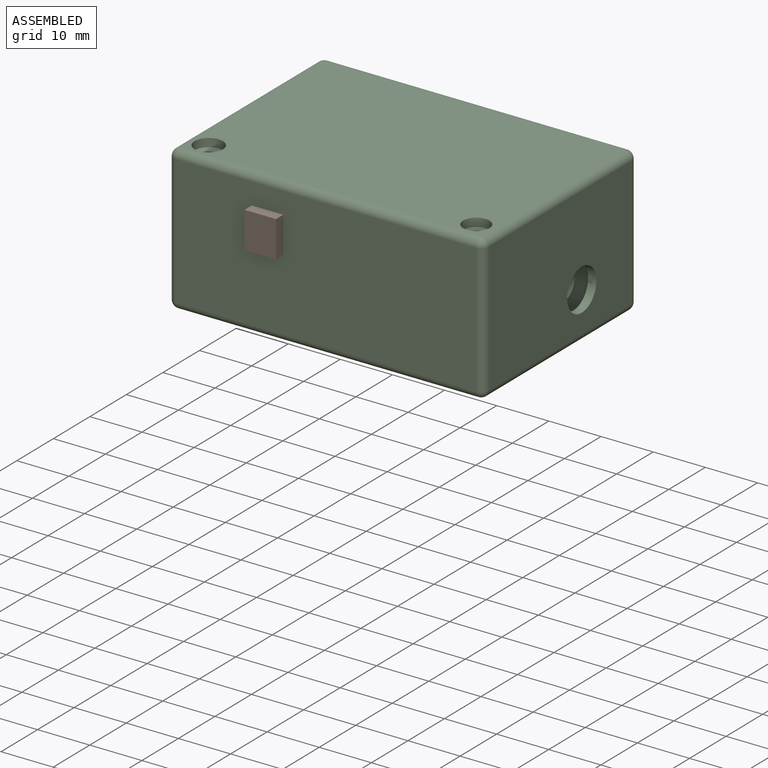
[diagram: assembled view]
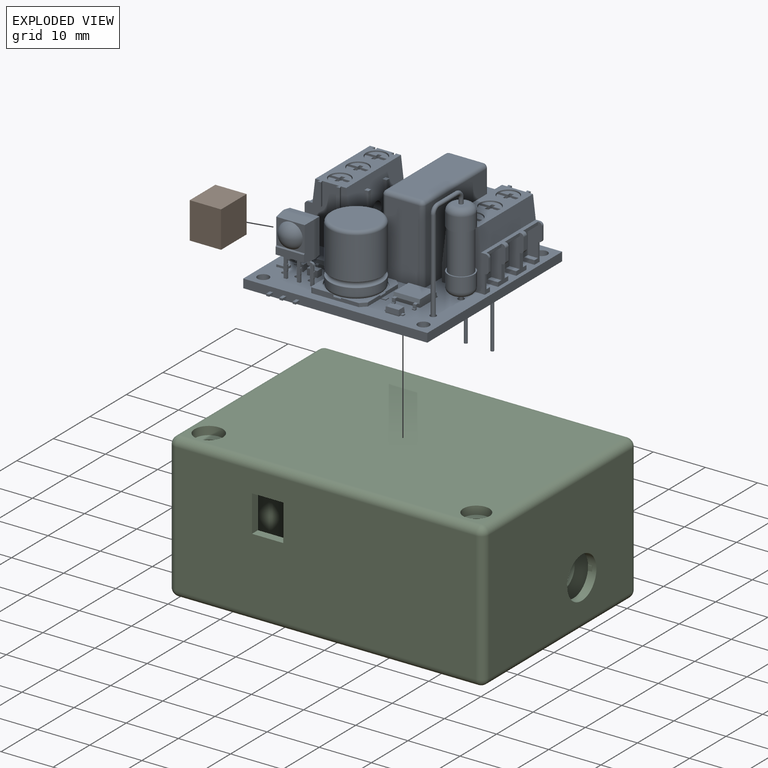
[diagram: exploded view]
GUIDED TOUR — FREECAD ASSEMBLY "case"

This assembly has 3 components, labeled P0..P2 below (a component is one placed body or linked part; the same part can appear more than once), held together by 0 modeled joints plus 2 derived contact edges. A joint is a constraint between two components; its type names the relative motion it leaves free:
  CONTACT — a derived adjacency edge — the two components touch in the source model (clearance under 2% of the assembly's diagonal); it is measured from the geometry, not a modeled constraint.
Axis/direction vectors are unit vectors and 'through' points are millimeter coordinates, both in the assembly's world frame.

MATES
  1. CONTACT "contact_0_1": P0 <-> P1, contact direction (-0.469, -0.811, 0.349) through (22.32, 4.51, 15.33) mm (derived from contact, not a modeled constraint)
  2. CONTACT "contact_0_2": P0 <-> P2, contact direction (0.000, 0.000, -1.000) through (14.91, 38.29, 5.96) mm (derived from contact, not a modeled constraint)

ASSEMBLY ORDER
  1. P0 — the base component [order heuristic]
  2. P1 [order heuristic]
  3. P2 [order heuristic]
Order-tag legend:
  [order heuristic] — this assembly is geometrically interlocked (no collision-free removal order exists), so components are listed in mate-graph order; insertion feasibility is not verified.

Of the 3 components, 2 carry a construction recipe — the FreeCAD feature program (sketches with constraints, then the solid features that consume them) that regenerates the part from scratch, quoted from this document or from the linked companion document it references; the rest are supplied as boundary geometry only. The tour below walks the components in assembly order: each is shown spotlighted twice — in the assembled view, then in the exploded view, where a leader line traces a displaced component back to its assembled socket (components that stay in place when exploded have no leader line; saturated green if recipe-attached, orange if geometry-only; every other component desaturated gray) — followed by its recipe or geometry summary and the mates that hold it.
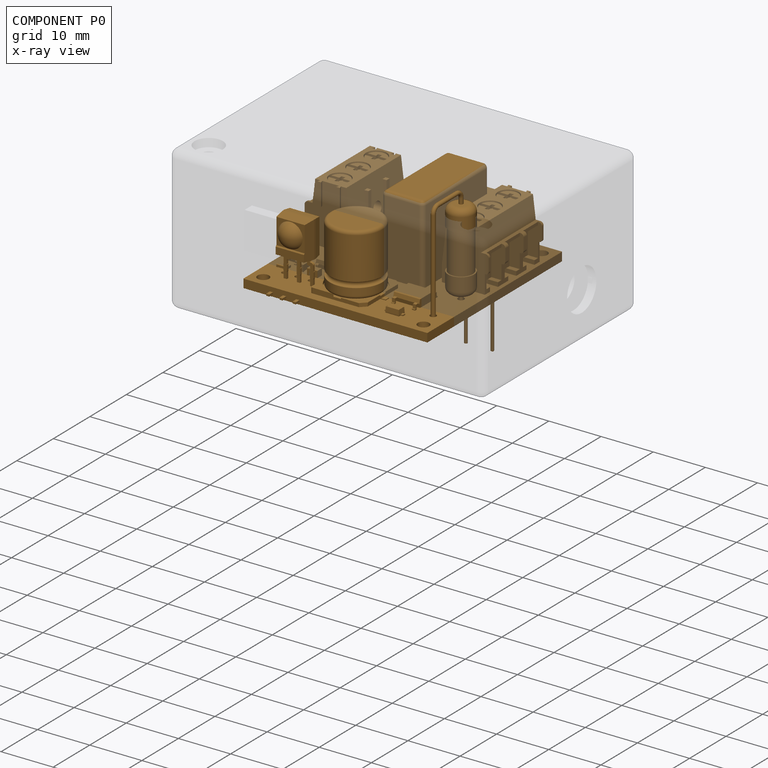
[diagram: component P0 — x-ray view]
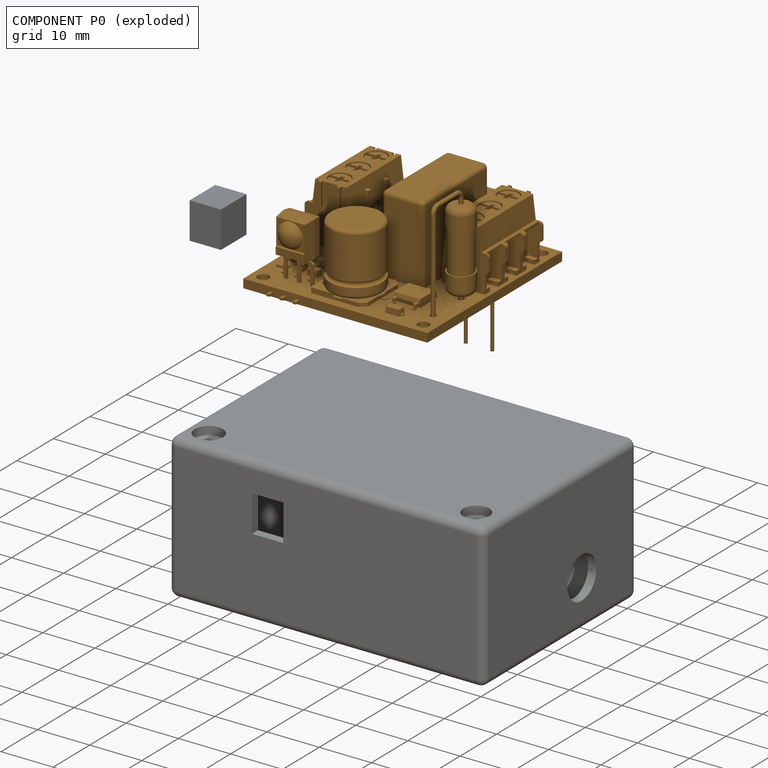
[diagram: component P0 — exploded]
COMPONENT P0 — geometry summary ("switch_pcb"; no construction recipe available for this part):
  bounding box: 38.2 x 37.9 x 35.3 mm
  tessellated surface: 114,258 triangles
  volume: 7300 mm^3 (14% of its bounding box)
Held by: resting contact with P1 (derived edge); resting contact with P2 (derived edge).
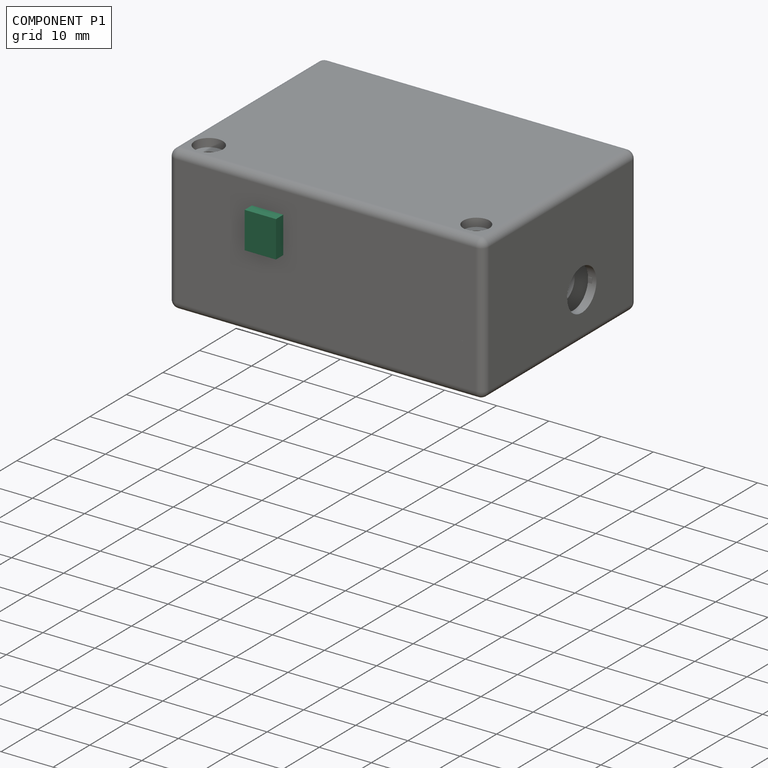
[diagram: component P1 — assembled]
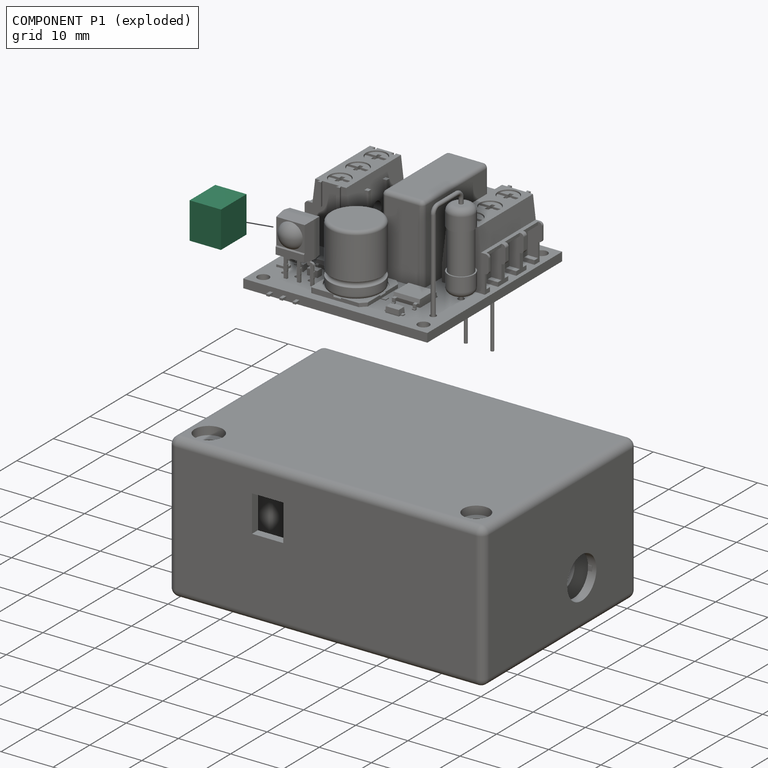
[diagram: component P1 — exploded]
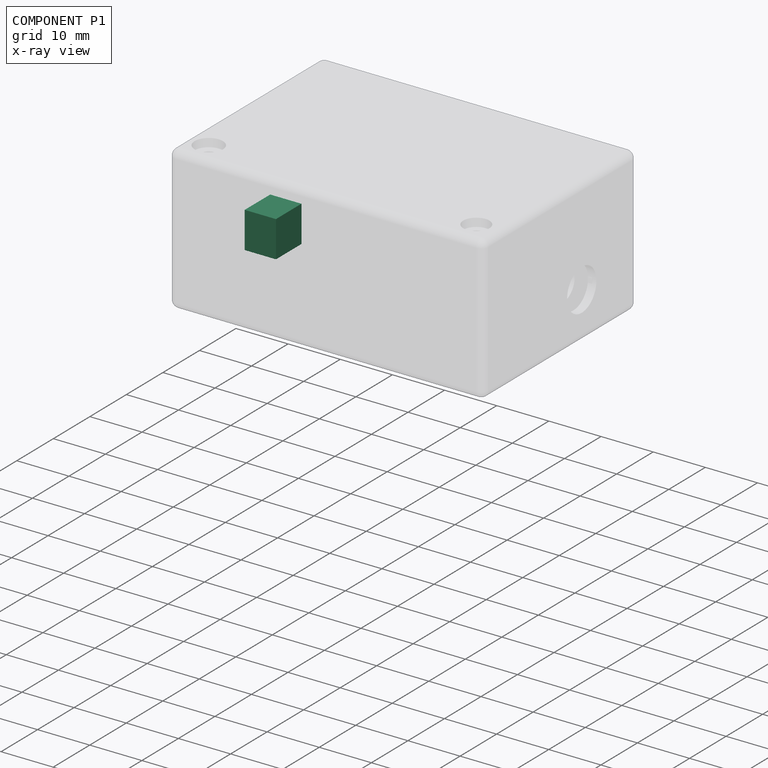
[diagram: component P1 — x-ray view]
COMPONENT P1 — recipe-attached ("IR receiver opening", modeled in this document).
Held by: resting contact with P0 (derived edge).
Construction recipe (the document's own serialized feature program — sketch geometry with constraints, then the solid features built on it; lengths are millimeters unless a unit is written):

FEATURE [Sketcher::SketchObject] Sketch001
  ArcFitTolerance = 1e-06
  AttachmentSupport = -> [XY_Plane015]
  FullyConstrained = true
  MakeInternals = false
  MapMode = 5
  expr: Constraints[10] = Spreadsheet.ir_receiver_package_height
  expr: Constraints[9] = Spreadsheet.ir_receiver_package_width
  sketch-geometry (4):
    g0: LineSegment StartX=0 StartY=7 StartZ=0 EndX=0 EndY=0 EndZ=0
    g1: LineSegment StartX=0 StartY=0 StartZ=0 EndX=6 EndY=0 EndZ=0
    g2: LineSegment StartX=6 StartY=0 StartZ=0 EndX=6 EndY=7 EndZ=0
    g3: LineSegment StartX=6 StartY=7 StartZ=0 EndX=0 EndY=7 EndZ=0
  constraints (11):
    c: Coincident(g0,g1)
    c: Coincident(g1,g2)
    c: Coincident(g2,g3)
    c: Coincident(g3,g0)
    c: Vertical(g0)
    c: Vertical(g2)
    c: Horizontal(g1)
    c: Horizontal(g3)
    c: Coincident(g0,g-1)
    c: DistanceX(g3,g3) = 6
    c: DistanceY(g2,g2) = 7
FEATURE [PartDesign::Pad] Pad001
  Direction = (0,0,1)
  Length = 7
  Length2 = 10
  Profile = -> Sketch001
  ReferenceAxis = -> Sketch001 [N_Axis]
  Refine = true
  Suppressed = false
  Type = 0
  expr: Length = Spreadsheet.ir_receiver_package_height
FEATURE [PartDesign::Body] Body002  label="IR receiver opening"
  AllowCompound = false
  Group = -> [Sketch001,Pad001]
  Origin = -> Origin015
  Placement = pos=(16.1,-2,15.2) rot=(0,0,1;0rad)
  Tip = -> Pad001
  expr: .Placement.Base.x = Spreadsheet.ir_receiver_pos_x + Spreadsheet.wall_width + Spreadsheet.cable_clamp_width + Spreadsheet.pcb_to_case_clearence
  expr: .Placement.Base.z = Spreadsheet.wall_width + Spreadsheet.pcb_mounting_standoff_height + Spreadsheet.pcb_thickness + Spreadsheet.ir_receiver_pos_z
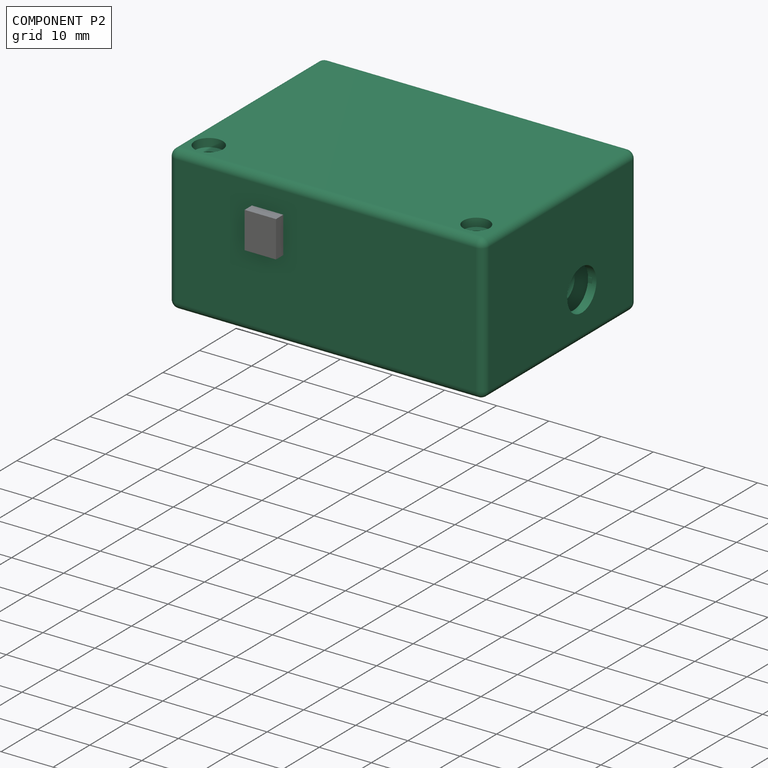
[diagram: component P2 — assembled]
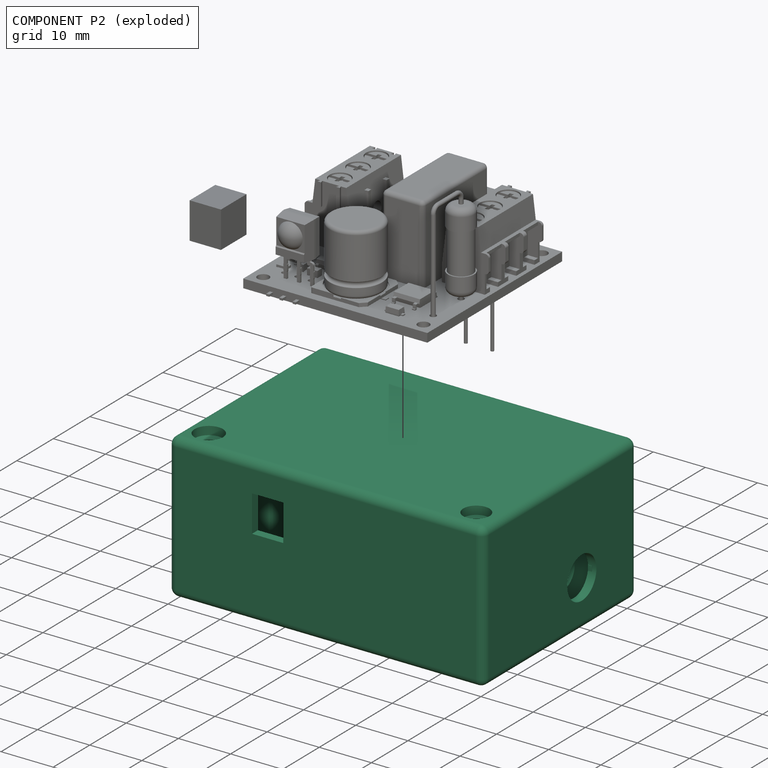
[diagram: component P2 — exploded]
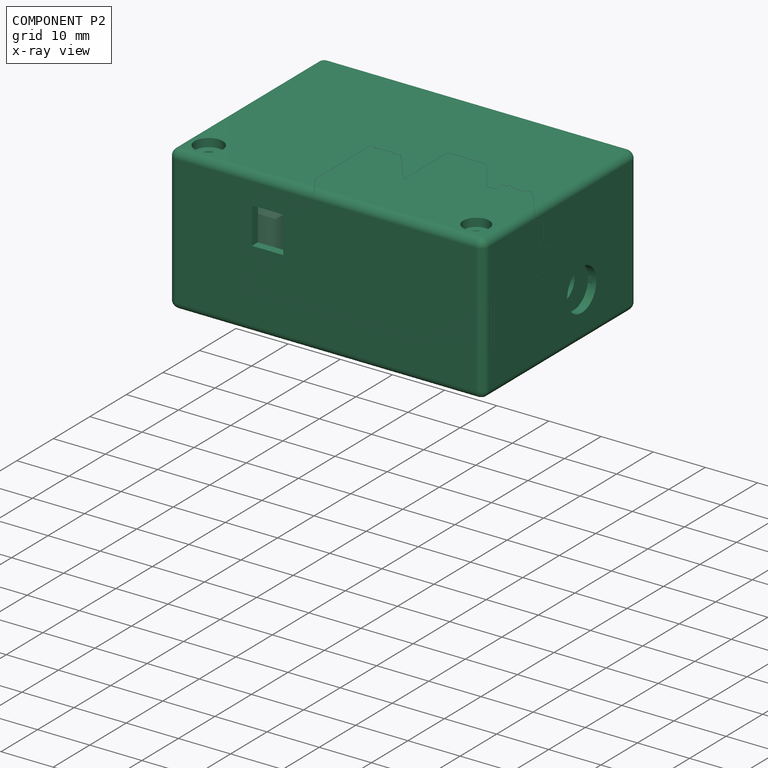
[diagram: component P2 — x-ray view]
COMPONENT P2 — recipe-attached ("Case001", modeled in this document).
Held by: resting contact with P0 (derived edge).
Construction recipe (the document's own serialized feature program — sketch geometry with constraints, then the solid features built on it; lengths are millimeters unless a unit is written):

FEATURE [Sketcher::SketchObject] Sketch
  ArcFitTolerance = 1e-06
  AttachmentSupport = -> [XY_Plane013]
  FullyConstrained = true
  MakeInternals = false
  MapMode = 5
  expr: Constraints[8] = Spreadsheet.pcb_width + 2 * Spreadsheet.pcb_to_case_clearence + 2 * Spreadsheet.wall_width + 2 * Spreadsheet.cable_clamp_width
  expr: Constraints[9] = Spreadsheet.pcb_length + 2 * Spreadsheet.pcb_to_case_clearence + 2 * Spreadsheet.wall_width
  sketch-geometry (4):
    g0: LineSegment StartX=0 StartY=42.125 StartZ=0 EndX=0 EndY=0 EndZ=0
    g1: LineSegment StartX=0 StartY=0 StartZ=0 EndX=60.5 EndY=0 EndZ=0
    g2: LineSegment StartX=60.5 StartY=0 StartZ=0 EndX=60.5 EndY=42.125 EndZ=0
    g3: LineSegment StartX=60.5 StartY=42.125 StartZ=0 EndX=0 EndY=42.125 EndZ=0
  constraints (11):
    c: Coincident(g0,g1)
    c: Coincident(g1,g2)
    c: Coincident(g2,g3)
    c: Coincident(g3,g0)
    c: Vertical(g0)
    c: Vertical(g2)
    c: Horizontal(g1)
    c: Horizontal(g3)
    c: DistanceX(g3,g3) = 60.5
    c: DistanceY(g2,g2) = 42.125
    c: Coincident(g-1,g0)
FEATURE [PartDesign::Pad] Pad
  Direction = (0,0,1)
  Length = 27.8
  Length2 = 10
  Profile = -> Sketch
  ReferenceAxis = -> Sketch [N_Axis]
  Refine = true
  Suppressed = false
  Type = 0
  expr: Length = Spreadsheet.pcb_to_case_clearence + 2 * Spreadsheet.wall_width + Spreadsheet.pcb_mounting_standoff_height + Spreadsheet.top_assembly_height + Spreadsheet.pcb_thickness
FEATURE [PartDesign::Fillet] Fillet
  Base = -> Pad [Edge1]
  BaseFeature = -> Pad
  Radius = 1.5
  Refine = true
  SupportTransform = false
  Suppressed = false
  UseAllEdges = true
FEATURE [PartDesign::Boolean] Boolean
  BaseFeature = -> Fillet
  Group = -> [Body002]
  Refine = true
  Suppressed = false
  Type = 1
  UsePlacement = true
FEATURE [PartDesign::Body] Body  label="Enclosure"
  AllowCompound = false
  Group = -> [Sketch,Pad,Fillet,Boolean]
  Origin = -> Origin013
  Tip = -> Boolean
FEATURE [Sketcher::SketchObject] Sketch002
  ArcFitTolerance = 1e-06
  AttachmentSupport = -> [YZ_Plane014]
  FullyConstrained = true
  MakeInternals = false
  MapMode = 5
  Placement = pos=(0,0,0) rot=(0.57735,0.57735,0.57735;2.0944rad)
  expr: Constraints[0] = Spreadsheet.cable_inlet_diameter
  expr: Constraints[1] = Spreadsheet.cable_inlet_diameter / 2
  expr: Constraints[2] = Spreadsheet.cable_inlet_diameter / 2
  sketch-geometry (1):
    g0: Circle CenterX=4 CenterY=4 CenterZ=0 NormalX=0 NormalY=0 NormalZ=1 AngleXU=0 Radius=4
  constraints (3):
    c: Diameter(g0) = 8
    c: DistanceX(g0) = 4
    c: DistanceY(g0) = 4
FEATURE [PartDesign::Pad] Pad002
  Direction = (1,0,0)
  Length = 10
  Length2 = 10
  Placement = pos=(0,0,0) rot=(1,1,1;2.0944rad)
  Profile = -> Sketch002
  ReferenceAxis = -> Sketch002 [N_Axis]
  Refine = true
  Suppressed = false
  Type = 0
FEATURE [PartDesign::Body] Body001  label="Cable inlet"
  AllowCompound = false
  Group = -> [Sketch002,Pad002]
  Origin = -> Origin014
  Placement = pos=(-3,22.9,5.2) rot=(0,0,1;0rad)
  Tip = -> Pad002
  expr: .Placement.Base.y = Spreadsheet.cable_inlet_pos_y - Spreadsheet.cable_inlet_diameter / 2 + Spreadsheet.wall_width + Spreadsheet.pcb_to_case_clearence
  expr: .Placement.Base.z = Spreadsheet.wall_width + Spreadsheet.pcb_mounting_standoff_height + Spreadsheet.pcb_thickness - Spreadsheet.cable_inlet_diameter / 2
FEATURE [Sketcher::SketchObject] Sketch003
  ArcFitTolerance = 1e-06
  AttachmentSupport = -> [XY_Plane016]
  FullyConstrained = true
  MakeInternals = false
  MapMode = 5
  expr: Constraints[8] = Spreadsheet.pcb_to_case_clearence * 2 + Spreadsheet.cable_clamp_width * 2 + Spreadsheet.pcb_width
  expr: Constraints[9] = Spreadsheet.pcb_length + 2 * Spreadsheet.pcb_to_case_clearence
  sketch-geometry (4):
    g0: LineSegment StartX=0 StartY=38.925 StartZ=0 EndX=0 EndY=0 EndZ=0
    g1: LineSegment StartX=0 StartY=0 StartZ=0 EndX=57.3 EndY=0 EndZ=0
    g2: LineSegment StartX=57.3 StartY=0 StartZ=0 EndX=57.3 EndY=38.925 EndZ=0
    g3: LineSegment StartX=57.3 StartY=38.925 StartZ=0 EndX=0 EndY=38.925 EndZ=0
  constraints (11):
    c: Coincident(g0,g1)
    c: Coincident(g1,g2)
    c: Coincident(g2,g3)
    c: Coincident(g3,g0)
    c: Vertical(g0)
    c: Vertical(g2)
    c: Horizontal(g1)
    c: Horizontal(g3)
    c: DistanceX(g3,g3) = 57.3
    c: DistanceY(g2,g2) = 38.925
    c: Coincident(g0,g-1)
FEATURE [PartDesign::Pad] Pad003
  Direction = (0,0,1)
  Length = 24.6
  Length2 = 10
  Profile = -> Sketch003
  ReferenceAxis = -> Sketch003 [N_Axis]
  Refine = true
  Suppressed = false
  Type = 0
  expr: Length = Spreadsheet.pcb_thickness + Spreadsheet.pcb_mounting_standoff_height + Spreadsheet.top_assembly_height + Spreadsheet.pcb_to_case_clearence
FEATURE [PartDesign::Body] Body003  label="Inner"
  AllowCompound = false
  Group = -> [Sketch003,Pad003]
  Origin = -> Origin016
  Placement = pos=(1.6,1.6,1.6) rot=(0,0,1;0rad)
  Tip = -> Pad003
  expr: .Placement.Base.x = Spreadsheet.wall_width
  expr: .Placement.Base.y = Spreadsheet.wall_width
  expr: .Placement.Base.z = Spreadsheet.wall_width
FEATURE [Sketcher::SketchObject] Sketch004
  ArcFitTolerance = 1e-06
  AttachmentSupport = -> [XY_Plane017]
  FullyConstrained = true
  MakeInternals = false
  MapMode = 5
  expr: Constraints[8] = Spreadsheet.pcb_to_case_clearence + 2.275
  sketch-geometry (5):
    g0: ArcOfCircle CenterX=3 CenterY=3.275 CenterZ=0 NormalX=0 NormalY=0 NormalZ=1 AngleXU=0 Radius=3 StartAngle=0 EndAngle=3.14159
    g1: LineSegment StartX=0 StartY=3.275 StartZ=0 EndX=0 EndY=0 EndZ=0
    g2: LineSegment StartX=0 StartY=0 StartZ=0 EndX=6 EndY=0 EndZ=0
    g3: LineSegment StartX=6 StartY=0 StartZ=0 EndX=6 EndY=3.275 EndZ=0
    g4: Circle CenterX=3 CenterY=3.275 CenterZ=0 NormalX=0 NormalY=0 NormalZ=1 AngleXU=0 Radius=1
  constraints (14):
    c: Coincident(g1,g0)
    c: Vertical(g1)
    c: Coincident(g2,g1)
    c: Horizontal(g2)
    c: Coincident(g3,g2)
    c: Coincident(g3,g0)
    c: Vertical(g3)
    c: DistanceX(g2,g2) = 6
    c: DistanceY(g1,g1) = 3.275
    c: Equal(g1,g3)
    c: Horizontal(g0,g0)
    c: Diameter(g4) = 2
    c: Coincident(g4,g0)
    c: Coincident(g-1,g1)
FEATURE [PartDesign::Pad] Pad004
  Direction = (0,0,1)
  Length = 4.4
  Length2 = 10
  Profile = -> Sketch004
  ReferenceAxis = -> Sketch004 [N_Axis]
  Refine = true
  Suppressed = false
  Type = 0
  expr: Length = Spreadsheet.pcb_mounting_standoff_height - Spreadsheet.wall_width
FEATURE [PartDesign::Body] Body004  label="Körper"
  AllowCompound = false
  Group = -> [Sketch004,Pad004]
  Origin = -> Origin017
  Placement = pos=(11.875,1.6,1.6) rot=(0,0,1;0rad)
  Tip = -> Pad004
  expr: .Placement.Base.x = Spreadsheet.wall_width + Spreadsheet.pcb_to_case_clearence + Spreadsheet.cable_clamp_width + 2.275 - 3
  expr: .Placement.Base.y = Spreadsheet.wall_width
  expr: .Placement.Base.z = Spreadsheet.wall_width
FEATURE [Sketcher::SketchObject] Sketch005
  ArcFitTolerance = 1e-06
  AttachmentSupport = -> [XY_Plane018]
  FullyConstrained = true
  MakeInternals = false
  MapMode = 5
  expr: Constraints[3] = Spreadsheet.cable_inlet_diameter * 1.8 + 6
  sketch-geometry (7):
    g0: LineSegment StartX=0 StartY=10.2 StartZ=0 EndX=0 EndY=-10.2 EndZ=0
    g1: GeomPoint X=0 Y=0 Z=0
    g2: LineSegment StartX=6 StartY=10.2 StartZ=0 EndX=6 EndY=-10.2 EndZ=0
    g3: ArcOfCircle CenterX=3 CenterY=10.2 CenterZ=0 NormalX=0 NormalY=0 NormalZ=1 AngleXU=0 Radius=3 StartAngle=0 EndAngle=3.14159
    g4: ArcOfCircle CenterX=3 CenterY=-10.2 CenterZ=0 NormalX=0 NormalY=0 NormalZ=1 AngleXU=0 Radius=3 StartAngle=3.14159 EndAngle=6.28319
    g5: Circle CenterX=3 CenterY=10.2 CenterZ=0 NormalX=0 NormalY=0 NormalZ=1 AngleXU=0 Radius=1
    g6: Circle CenterX=3 CenterY=-10.2 CenterZ=0 NormalX=0 NormalY=0 NormalZ=1 AngleXU=0 Radius=1
  constraints (18):
    c: Vertical(g0)
    c: Symmetric(g0,g0,g1)
    c: Coincident(g1,g-1)
    c: DistanceY(g0,g0) = 20.4
    c: Vertical(g2)
    c: Equal(g0,g2)
    c: Horizontal(g2,g0)
    c: DistanceX(g0,g2) = 6
    c: Coincident(g3,g2)
    c: Coincident(g3,g0)
    c: Coincident(g4,g0)
    c: Coincident(g4,g2)
    c: Equal(g3,g4)
    c: Horizontal(g3,g0)
    c: Diameter(g5) = 2
    c: Coincident(g5,g3)
    c: Diameter(g6) = 2
    c: Coincident(g6,g4)
FEATURE [PartDesign::Pad] Pad005
  Direction = (0,0,1)
  Length = 14
  Length2 = 10
  Profile = -> Sketch005
  ReferenceAxis = -> Sketch005 [N_Axis]
  Refine = true
  Suppressed = false
  Type = 0
  expr: Length = Spreadsheet.pcb_mounting_standoff_height + Spreadsheet.cable_inlet_diameter
FEATURE [PartDesign::Body] Body005  label="Cable relief"
  AllowCompound = false
  Group = -> [Sketch005,Pad005]
  Origin = -> Origin018
  Placement = pos=(4.6,26.9,1.6) rot=(0,0,1;0rad)
  Tip = -> Pad005
  expr: .Placement.Base.x = Spreadsheet.wall_width + Spreadsheet.pcb_to_case_clearence + Spreadsheet.cable_clamp_width / 2 - 3
  expr: .Placement.Base.y = Spreadsheet.cable_inlet_pos_y + Spreadsheet.wall_width + Spreadsheet.pcb_to_case_clearence
  expr: .Placement.Base.z = Spreadsheet.wall_width
FEATURE [Sketcher::SketchObject] Sketch006
  ArcFitTolerance = 1e-06
  AttachmentSupport = -> [YZ_Plane019]
  FullyConstrained = true
  MakeInternals = false
  MapMode = 5
  Placement = pos=(0,0,0) rot=(0.57735,0.57735,0.57735;2.0944rad)
  expr: Constraints[0] = Spreadsheet.cable_inlet_diameter * 0.8
  sketch-geometry (1):
    g0: Circle CenterX=0 CenterY=0 CenterZ=0 NormalX=0 NormalY=0 NormalZ=1 AngleXU=0 Radius=3.2
  constraints (2):
    c: Diameter(g0) = 6.4
    c: Coincident(g0,g-1)
FEATURE [PartDesign::Pad] Pad006
  Direction = (1,0,0)
  Length = 10
  Length2 = 10
  Placement = pos=(0,0,0) rot=(1,1,1;2.0944rad)
  Profile = -> Sketch006
  ReferenceAxis = -> Sketch006 [N_Axis]
  Refine = true
  Suppressed = false
  Type = 0
FEATURE [PartDesign::Body] Body006  label="Körper002"
  AllowCompound = false
  Group = -> [Sketch006,Pad006]
  Origin = -> Origin019
  Placement = pos=(3,26.9,9.2) rot=(0,0,1;0rad)
  Tip = -> Pad006
  expr: .Placement.Base.y = Spreadsheet.wall_width + Spreadsheet.pcb_to_case_clearence + Spreadsheet.cable_inlet_pos_y
  expr: .Placement.Base.z = Spreadsheet.pcb_mounting_standoff_height + Spreadsheet.wall_width + Spreadsheet.pcb_thickness
FEATURE [Sketcher::SketchObject] Sketch007
  ArcFitTolerance = 1e-06
  AttachmentSupport = -> [XY_Plane020]
  FullyConstrained = true
  MakeInternals = false
  MapMode = 5
  expr: Constraints[10] = Spreadsheet.wall_width / 2
  expr: Constraints[11] = Spreadsheet.wall_width / 2
  expr: Constraints[8] = Spreadsheet.wall_width + Spreadsheet.cable_clamp_width * 2 + Spreadsheet.pcb_to_case_clearence * 2 + Spreadsheet.pcb_width
  expr: Constraints[9] = Spreadsheet.wall_width + Spreadsheet.pcb_to_case_clearence * 2 + Spreadsheet.pcb_length
  sketch-geometry (13):
    g0: LineSegment StartX=0.8 StartY=41.325 StartZ=0 EndX=0.8 EndY=0.8 EndZ=0
    g1: LineSegment StartX=0.8 StartY=0.8 StartZ=0 EndX=59.7 EndY=0.8 EndZ=0
    g2: LineSegment StartX=59.7 StartY=0.8 StartZ=0 EndX=59.7 EndY=41.325 EndZ=0
    g3: LineSegment StartX=59.7 StartY=41.325 StartZ=0 EndX=0.8 EndY=41.325 EndZ=0
    g4: GeomPoint X=0.8 Y=0.8 Z=0
    g5: LineSegment StartX=58.9 StartY=40.525 StartZ=0 EndX=1.6 EndY=40.525 EndZ=0
    g6: LineSegment StartX=1.6 StartY=40.525 StartZ=0 EndX=1.6 EndY=1.6 EndZ=0
    g7: LineSegment StartX=1.6 StartY=1.6 StartZ=0 EndX=58.9 EndY=1.6 EndZ=0
    g8: LineSegment StartX=58.9 StartY=1.6 StartZ=0 EndX=58.9 EndY=40.525 EndZ=0
    g9: LineSegment [constr] StartX=58.9 StartY=40.525 StartZ=0 EndX=58.9 EndY=41.325 EndZ=0
    g10: LineSegment [constr] StartX=1.6 StartY=40.525 StartZ=0 EndX=0.8 EndY=40.525 EndZ=0
    g11: LineSegment [constr] StartX=1.6 StartY=1.6 StartZ=0 EndX=1.6 EndY=0.8 EndZ=0
    g12: LineSegment [constr] StartX=58.9 StartY=1.6 StartZ=0 EndX=59.7 EndY=1.6 EndZ=0
  constraints (41):
    c: Coincident(g0,g1)
    c: Coincident(g1,g2)
    c: Coincident(g2,g3)
    c: Coincident(g3,g0)
    c: Vertical(g0)
    c: Vertical(g2)
    c: Horizontal(g1)
    c: Horizontal(g3)
    c: DistanceX(g3,g3) = 58.9
    c: DistanceY(g2,g2) = 40.525
    c: DistanceX(g-1,g4) = 0.8
    c: DistanceY(g-1,g4) = 0.8
    c: Coincident(g4,g0)
    c: Coincident(g5,g6)
    c: Coincident(g5,g8)
    c: Coincident(g6,g7)
    c: Coincident(g7,g8)
    c: Perpendicular(g9,g5)
    c: PointOnObject(g9,g5)
    c: PointOnObject(g9,g3)
    c: Perpendicular(g10,g6)
    c: PointOnObject(g10,g6)
    c: PointOnObject(g10,g0)
    c: Perpendicular(g11,g7)
    c: PointOnObject(g11,g7)
    c: PointOnObject(g11,g1)
    c: Perpendicular(g12,g8)
    c: PointOnObject(g12,g8)
    c: PointOnObject(g12,g2)
    c: Parallel(g8,g2)
    c: Parallel(g5,g3)
    c: Parallel(g6,g0)
    c: Equal(g10,g9)
    c: Parallel(g7,g1)
    c: Equal(g11,g9)
    c: Equal(g12,g9)
    c: Distance(g9) = 0.8
    c: Block(g11)
    c: Block(g10)
    c: Block(g9)
    c: Block(g12)
FEATURE [PartDesign::Pad] Pad007
  Direction = (0,0,1)
  Length = 1
  Length2 = 10
  Profile = -> Sketch007
  ReferenceAxis = -> Sketch007 [N_Axis]
  Refine = true
  Suppressed = false
  Type = 0
FEATURE [PartDesign::Body] Body007  label="Körper003"
  AllowCompound = false
  Group = -> [Sketch007,Pad007]
  Origin = -> Origin020
  Placement = pos=(0,0,8.5) rot=(0,0,1;0rad)
  Tip = -> Pad007
FEATURE [Sketcher::SketchObject] Sketch008
  ArcFitTolerance = 1e-06
  AttachmentSupport = -> [XY_Plane021]
  FullyConstrained = true
  MakeInternals = false
  MapMode = 5
  sketch-geometry (8):
    g0: LineSegment StartX=0 StartY=6 StartZ=0 EndX=0 EndY=0 EndZ=0
    g1: LineSegment StartX=0 StartY=0 StartZ=0 EndX=6 EndY=0 EndZ=0
    g2: LineSegment StartX=6 StartY=0 StartZ=0 EndX=6 EndY=5 EndZ=0
    g3: LineSegment StartX=5 StartY=6 StartZ=0 EndX=0 EndY=6 EndZ=0
    g4: ArcOfCircle CenterX=5 CenterY=5 CenterZ=0 NormalX=0 NormalY=0 NormalZ=1 AngleXU=0 Radius=1 StartAngle=2e-16 EndAngle=1.5708
    g5: GeomPoint [constr] X=6 Y=6 Z=0
    g6: GeomPoint X=3 Y=3 Z=0
    g7: Circle CenterX=3 CenterY=3 CenterZ=0 NormalX=0 NormalY=0 NormalZ=1 AngleXU=0 Radius=1
  constraints (18):
    c: Coincident(g0,g1)
    c: Coincident(g1,g2)
    c: Coincident(g3,g0)
    c: Vertical(g0)
    c: Vertical(g2)
    c: Horizontal(g1)
    c: Horizontal(g3)
    c: PointOnObject(g5,g2)
    c: PointOnObject(g5,g3)
    c: Tangent(g2,g4) = -1.5708
    c: Tangent(g3,g4) = -1.5708
    c: DistanceX(g1,g1) = 6
    c: DistanceY(g0,g0) = 6
    c: Radius(g4) = 1
    c: Symmetric(g0,g1,g6)
    c: Diameter(g7) = 2
    c: Coincident(g7,g6)
    c: Coincident(g0,g-1)
FEATURE [PartDesign::Pad] Pad008
  Direction = (0,0,1)
  Length = 5
  Length2 = 10
  Profile = -> Sketch008
  ReferenceAxis = -> Sketch008 [N_Axis]
  Refine = true
  Suppressed = false
  Type = 0
FEATURE [PartDesign::Body] Body008  label="Körper004"
  AllowCompound = false
  Group = -> [Sketch008,Pad008]
  Origin = -> Origin021
  Placement = pos=(1.6,1.6,1.6) rot=(0,0,1;0rad)
  Tip = -> Pad008
  expr: .Placement.Base.x = Spreadsheet.wall_width
  expr: .Placement.Base.y = Spreadsheet.wall_width
  expr: .Placement.Base.z = Spreadsheet.wall_width
FEATURE [Sketcher::SketchObject] Sketch009
  ArcFitTolerance = 1e-06
  AttachmentSupport = -> [XY_Plane022]
  FullyConstrained = true
  MakeInternals = false
  MapMode = 5
  sketch-geometry (8):
    g0: LineSegment StartX=0 StartY=6 StartZ=0 EndX=0 EndY=0 EndZ=0
    g1: LineSegment StartX=0 StartY=0 StartZ=0 EndX=6 EndY=0 EndZ=0
    g2: LineSegment StartX=6 StartY=0 StartZ=0 EndX=6 EndY=5 EndZ=0
    g3: LineSegment StartX=5 StartY=6 StartZ=0 EndX=0 EndY=6 EndZ=0
    g4: ArcOfCircle CenterX=5 CenterY=5 CenterZ=0 NormalX=0 NormalY=0 NormalZ=1 AngleXU=0 Radius=1 StartAngle=2.84e-14 EndAngle=1.5708
    g5: GeomPoint [constr] X=6 Y=6 Z=0
    g6: GeomPoint X=3 Y=3 Z=0
    g7: Circle CenterX=3 CenterY=3 CenterZ=0 NormalX=0 NormalY=0 NormalZ=1 AngleXU=0 Radius=1.2
  constraints (18):
    c: Coincident(g0,g1)
    c: Coincident(g1,g2)
    c: Coincident(g3,g0)
    c: Vertical(g0)
    c: Vertical(g2)
    c: Horizontal(g1)
    c: Horizontal(g3)
    c: PointOnObject(g5,g2)
    c: PointOnObject(g5,g3)
    c: Tangent(g2,g4) = -1.5708
    c: Tangent(g3,g4) = -1.5708
    c: DistanceX(g1,g1) = 6
    c: Equal(g0,g1)
    c: Radius(g4) = 1
    c: Coincident(g0,g-1)
    c: Symmetric(g0,g1,g6)
    c: Diameter(g7) = 2.4
    c: Coincident(g7,g6)
FEATURE [PartDesign::Pad] Pad009
  Direction = (0,0,1)
  Length = 17
  Length2 = 10
  Profile = -> Sketch009
  ReferenceAxis = -> Sketch009 [N_Axis]
  Refine = true
  Suppressed = false
  Type = 0
  expr: Length = Spreadsheet.top_assembly_height + Spreadsheet.pcb_to_case_clearence
FEATURE [PartDesign::Body] Body009  label="Körper005"
  AllowCompound = false
  Group = -> [Sketch009,Pad009]
  Origin = -> Origin022
  Placement = pos=(1.6,1.6,9.2) rot=(0,0,1;0rad)
  Tip = -> Pad009
  expr: .Placement.Base.x = Spreadsheet.wall_width
  expr: .Placement.Base.y = Spreadsheet.wall_width
  expr: .Placement.Base.z = Spreadsheet.wall_width + Spreadsheet.pcb_mounting_standoff_height + Spreadsheet.pcb_thickness
PROVENANCE & LICENSES
Assembly and component geometry: a FreeCAD (.FCStd) document from a public repository crawl; components, placements and joints were extracted with FreeCAD and each solid tessellated.
Construction recipes: the document's own serialized feature recipes (and, for linked parts, the recipes of companion documents from the same project).
License: apache-2.0.
Joints: native FreeCAD joints and A2plus constraints are mapped to standard mate types; edges marked 'derived from contact' connect touching components and are measured from the geometry, not modeled.
Verification: 2 of this assembly's 3 components carry a construction recipe (2 from this document itself); the rest are geometry-only. Every component's tessellation passed the extraction mesh gates (mesh-volume checksum against the B-rep where available, bounding-box inflation <= 2%).
Renders: orthographic iso camera (az 35 / el 25); the floor grid conveys scale (grid pitch printed in each image; no ruler). In the exploded view each component is displaced by its stored offset vector: the offsets alone carry the explosion direction (mate normal/axis signs are not orientation cues and do not encode it), and separation distances are assigned per mate-chain, not proportionally to assembly-order depth.
